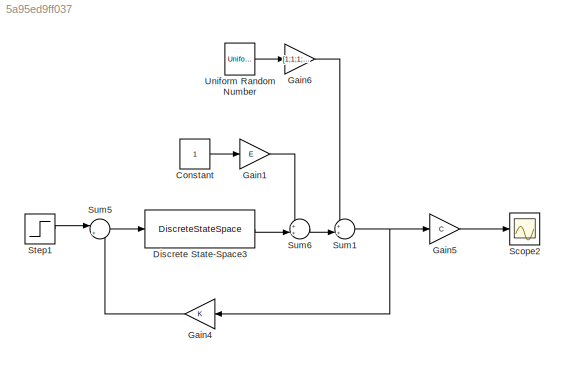
MODEL slx_5a95ed9ff037
KIND model
CONFIG AbsTol = auto
CONFIG EnableMultiTasking = off
CONFIG FixedStep = auto
CONFIG MaxStep = auto
CONFIG MinStep = auto
CONFIG RelTol = 1e-3
CONFIG SampleTimeConstraint = Unconstrained
CONFIG SolverName = VariableStepAuto
CONFIG StartTime = 0.0
CONFIG StopTime = 10.0
BLOCK [Constant] Constant
  SampleTime = Ts
BLOCK [DiscreteStateSpace] Discrete State-Space3
  A = A
  B = B
  C = eye(4)
  D = zeros(4,1)
  InitialCondition = x0
  SampleTime = Ts
BLOCK [Gain] Gain1
  Gain = E
  Multiplication = Matrix(K*u)
BLOCK [Gain] Gain4
  Gain = K
  Multiplication = Matrix(K*u)
BLOCK [Gain] Gain5
  Gain = C
  Multiplication = Matrix(K*u)
BLOCK [Gain] Gain6
  Gain = [1;1;1;1]
  Multiplication = Matrix(K*u)
BLOCK [Scope] Scope2
  Floating = off
  NumInputPorts = 1
  ScopeSpecificationString = Simulink.scopes.TimeScopeBlockCfg('CurrentConfiguration', extmgr.ConfigurationSet(extmgr.Configuration('Core','General UI',true),extmgr.Configuration('Core','Source UI',true),extmgr.Configuration('Sources','WiredSimulink',true),extmgr.Configuration('Visuals','Time Domain',true,'SerializedDisplays',{struct('MinYLimReal','-1.07034','MaxYLimReal','2.5089','YLabelReal','','MinYLimMag','0.00000','MaxYL...<+1384ch>
BLOCK [Step] Step1
  SampleTime = Ts
BLOCK [Sum] Sum1
  Inputs = ++|
BLOCK [Sum] Sum5
  Inputs = |+-
BLOCK [Sum] Sum6
  Inputs = ++|
BLOCK [UniformRandomNumber] Uniform Random Number
  Maximum = 0.2
  Minimum = -0.2
  SampleTime = Ts
LINE Constant:1 -> Gain1:1
LINE Discrete State-Space3:1 -> Sum6:2
LINE Gain1:1 -> Sum6:1
LINE Gain4:1 -> Sum5:2
LINE Gain5:1 -> Scope2:1
LINE Gain6:1 -> Sum1:1
LINE Step1:1 -> Sum5:1
NET Sum1:1 -> Gain4:1, Gain5:1
LINE Sum5:1 -> Discrete State-Space3:1
LINE Sum6:1 -> Sum1:2
LINE Uniform Random Number:1 -> Gain6:1
note: NET lines group one-source signal fan-out (src -> all destinations, sorted); 1:1 wires keep LINE
